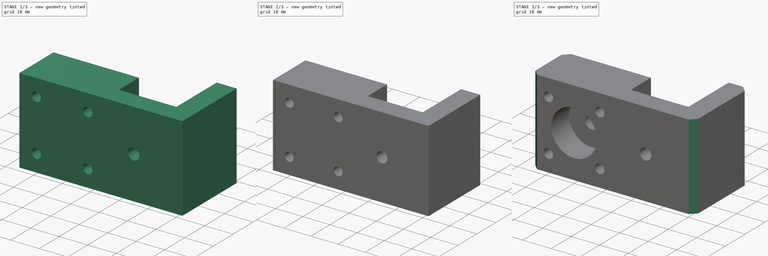
[diagram: build sequence overview — one tinted view per stage of 3, left to right]
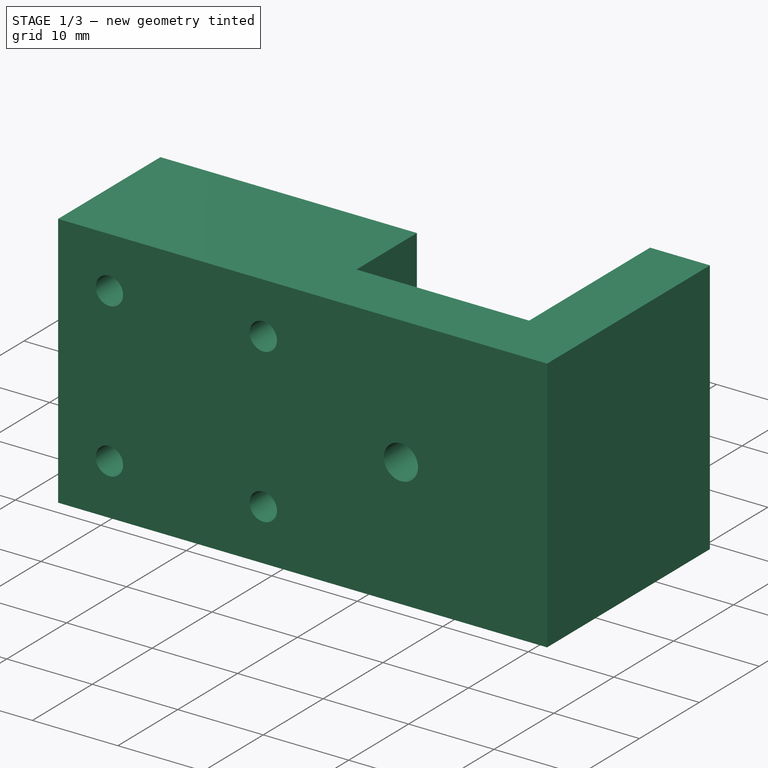
[diagram: stage 1 of 3 — iso view after this stage's code; geometry added in this stage tinted green]
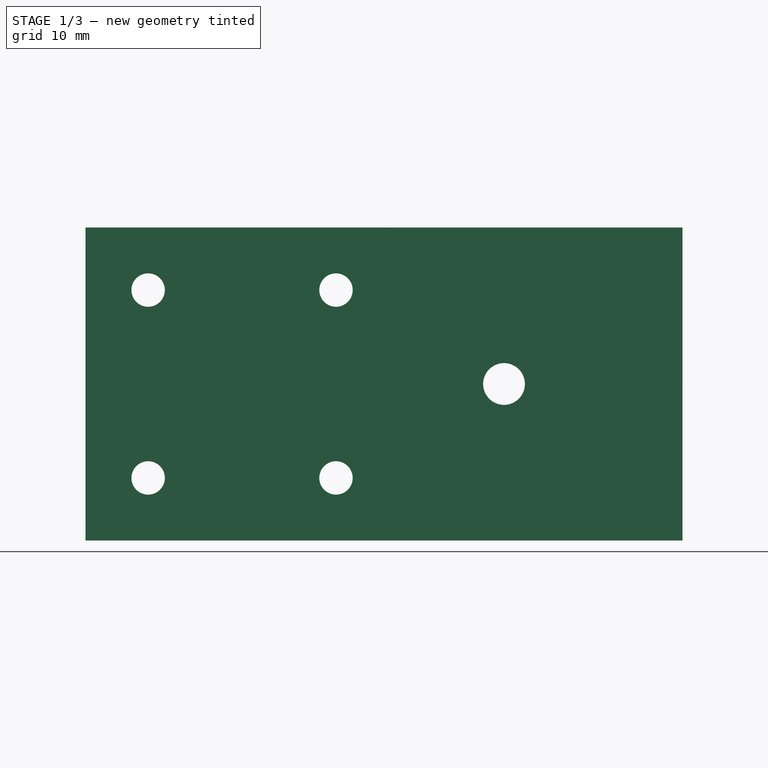
[diagram: stage 1 of 3 — front view after this stage's code; geometry added in this stage tinted green]
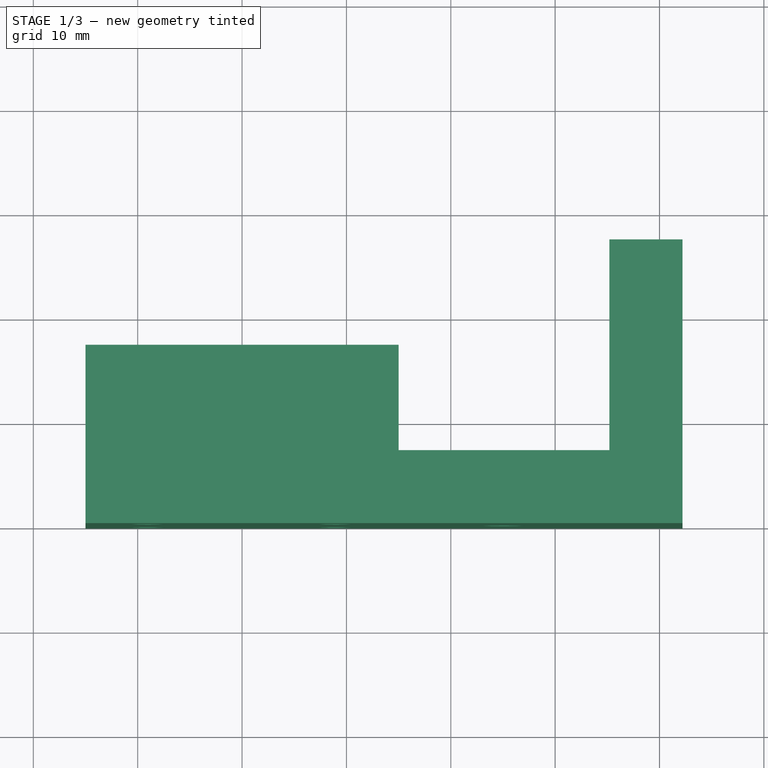
[diagram: stage 1 of 3 — top view after this stage's code; geometry added in this stage tinted green]
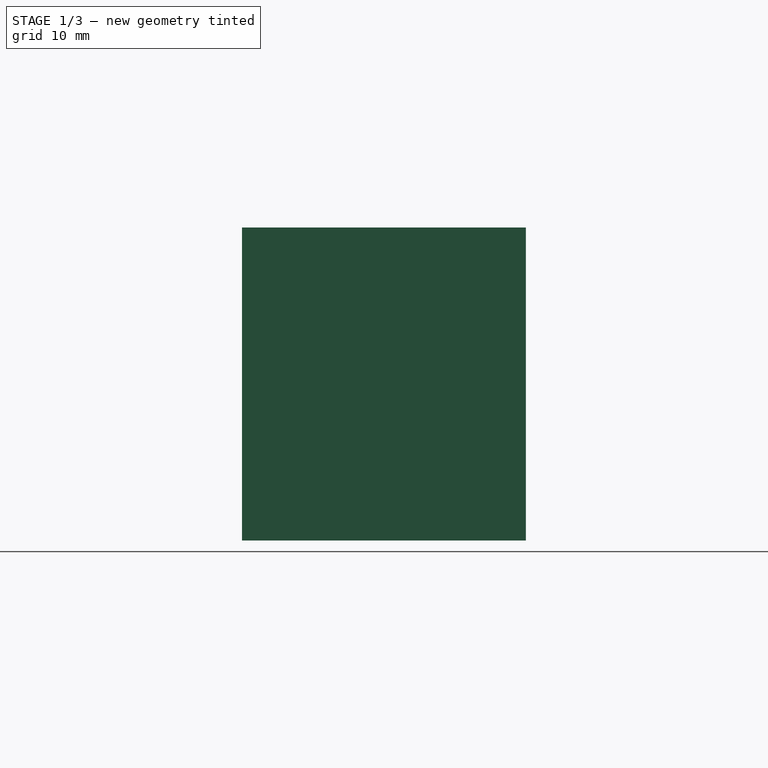
[diagram: stage 1 of 3 — right view after this stage's code; geometry added in this stage tinted green]
FCSTD DOCUMENT  (FreeCAD 0.19R)
Label: pan_n_conn_keeper
License: All rights reserved
LicenseURL: http://en.wikipedia.org/wiki/All_rights_reserved
objects: Sketcher::SketchObject×3, PartDesign::Body×2, PartDesign::Pad×1, PartDesign::Revolution×1, PartDesign::Pocket×1, Part::Cut×1, Part::Chamfer×1
note: 13 computed .brp shape members not serialized (recipe doc carries the construction recipe); baked Part::Feature solids carry a one-line shape summary decoded from their .brp

FEATURE [Sketcher::SketchObject] Sketch
  MapMode = 5
  Support = -> [XY_Plane]
  expr: Constraints[22] = .Constraints.slot_size * 0.5
  expr: Constraints[21] = .Constraints.wall_width
  expr: Constraints[20] = .Constraints.width * 0.5
  sketch-geometry (8):
    g0: LineSegment StartX=-15 StartY=17.1 StartZ=0 EndX=15 EndY=17.1 EndZ=0
    g1: LineSegment StartX=15 StartY=17.1 StartZ=0 EndX=15 EndY=7 EndZ=0
    g2: LineSegment StartX=15 StartY=7 StartZ=0 EndX=35.2 EndY=7 EndZ=0
    g3: LineSegment StartX=35.2 StartY=7 StartZ=0 EndX=35.2 EndY=27.2 EndZ=0
    g4: LineSegment StartX=35.2 StartY=27.2 StartZ=0 EndX=42.2 EndY=27.2 EndZ=0
    g5: LineSegment StartX=42.2 StartY=27.2 StartZ=0 EndX=42.2 EndY=0 EndZ=0
    g6: LineSegment StartX=42.2 StartY=0 StartZ=0 EndX=-15 EndY=0 EndZ=0
    g7: LineSegment StartX=-15 StartY=0 StartZ=0 EndX=-15 EndY=17.1 EndZ=0
  constraints (24):
    c: Horizontal(g0)
    c: Coincident(g0,g1)
    c: Vertical(g1)
    c: Coincident(g1,g2)
    c: Horizontal(g2)
    c: Coincident(g2,g3)
    c: Vertical(g3)
    c: Coincident(g3,g4)
    c: Horizontal(g4)
    c: Coincident(g4,g5)
    c: PointOnObject(g5,g-1)
    c: Vertical(g5)
    c: Distance(g4) = 7  'wall_width'
    c: Distance(g2) = 20.2  'slot_size'
    c: Coincident(g5,g6)
    c: PointOnObject(g6,g-1)
    c: Coincident(g6,g7)
    c: Vertical(g7)
    c: Coincident(g0,g7)
    c: Distance(g0) = 30  'width'
    c: DistanceX(g6,g-1) = 15
    c: DistanceY(g-1,g1) = 7
    c: Distance(g1) = 10.1
    c: Equal(g3,g2)
FEATURE [PartDesign::Pad] Pad
  Length = 30
  Length2 = 100
  Midplane = true
  Profile = -> Sketch
  Type = 0
FEATURE [PartDesign::Body] Body002  label="BodyInner"
  Group = -> [Sketch001,Revolution]
  Origin = -> Origin002
  Tip = -> Revolution
FEATURE [PartDesign::Pocket] Pocket
  BaseFeature = -> Pad
  Length = 5
  Length2 = 100
  Profile = -> Sketch002
  Type = 1
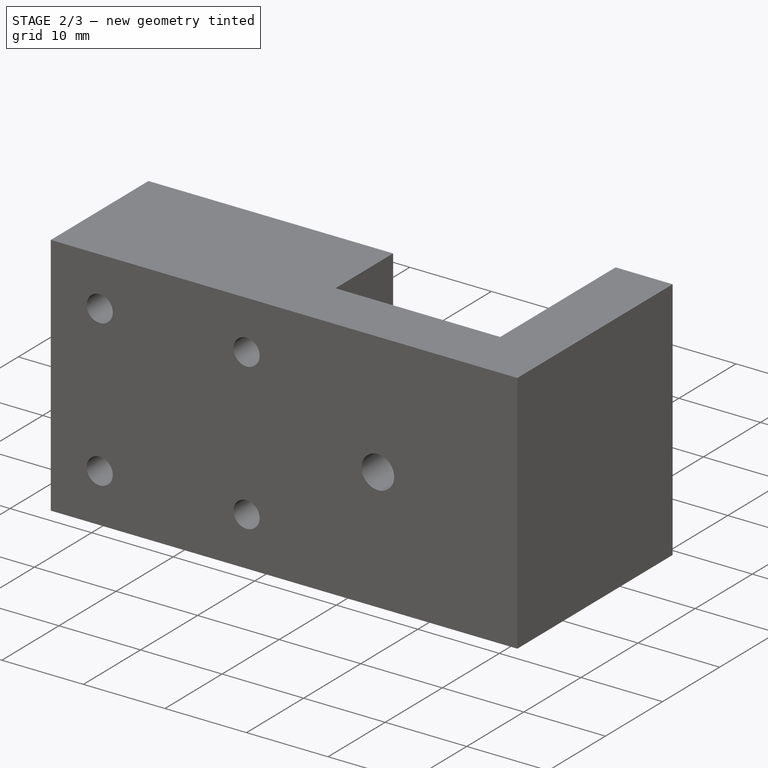
[diagram: stage 2 of 3 — iso view after this stage's code; geometry added in this stage tinted green]
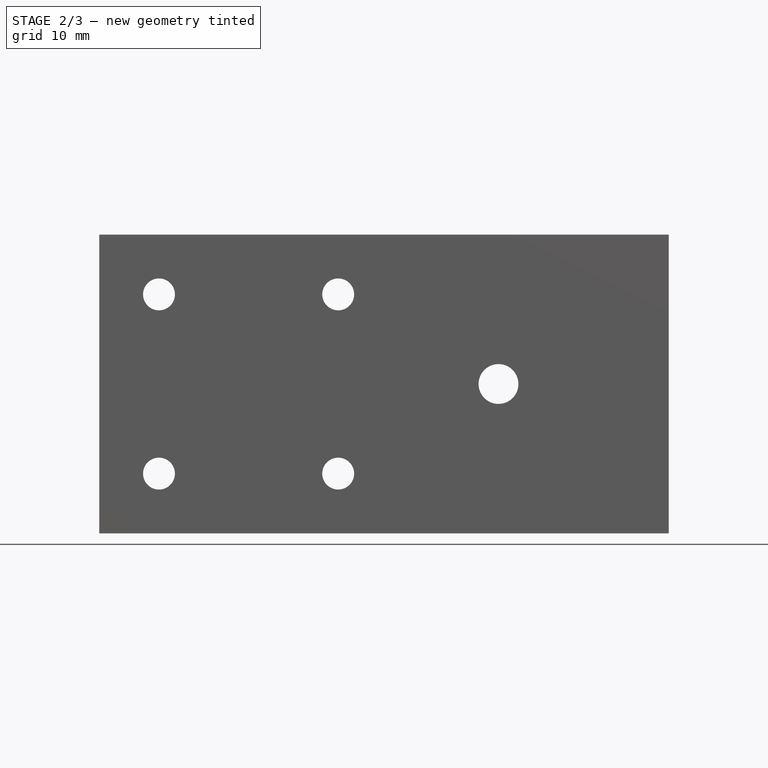
[diagram: stage 2 of 3 — front view after this stage's code; geometry added in this stage tinted green]
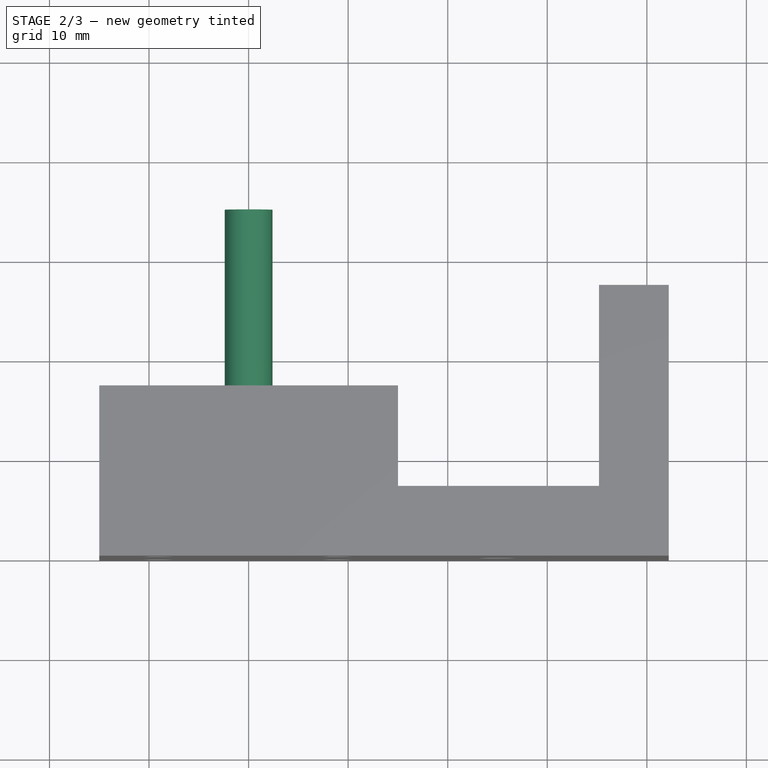
[diagram: stage 2 of 3 — top view after this stage's code; geometry added in this stage tinted green]
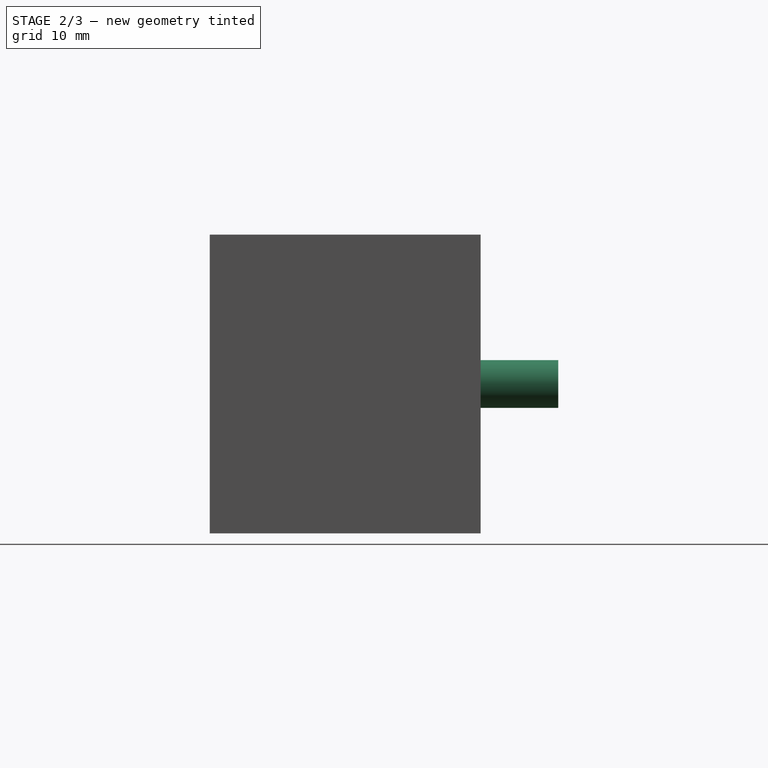
[diagram: stage 2 of 3 — right view after this stage's code; geometry added in this stage tinted green]
FEATURE [Sketcher::SketchObject] Sketch001  label="SketchInner"
  MapMode = 5
  Support = -> [XY_Plane002]
  sketch-geometry (6):
    g0: LineSegment StartX=0 StartY=0 StartZ=0 EndX=8 EndY=0 EndZ=0
    g1: LineSegment StartX=8 StartY=0 StartZ=0 EndX=8 EndY=9 EndZ=0
    g2: LineSegment StartX=8 StartY=9 StartZ=0 EndX=2.4 EndY=9 EndZ=0
    g3: LineSegment StartX=2.4 StartY=9 StartZ=0 EndX=2.4 EndY=35 EndZ=0
    g4: LineSegment StartX=2.4 StartY=35 StartZ=0 EndX=0 EndY=35 EndZ=0
    g5: LineSegment StartX=0 StartY=35 StartZ=0 EndX=0 EndY=0 EndZ=0
  constraints (17):
    c: Coincident(g-1,g0)
    c: PointOnObject(g0,g-1)
    c: Coincident(g0,g1)
    c: Vertical(g1)
    c: Coincident(g1,g2)
    c: Horizontal(g2)
    c: Coincident(g2,g3)
    c: Vertical(g3)
    c: Coincident(g3,g4)
    c: PointOnObject(g4,g-2)
    c: Horizontal(g4)
    c: Coincident(g4,g5)
    c: Coincident(g5,g0)
    c: Distance(g0) = 8
    c: Distance(g4) = 2.4
    c: Distance(g1) = 9
    c: Distance(g5) = 35
FEATURE [Sketcher::SketchObject] Sketch002  label="SketchHoles"
  MapMode = 5
  Placement = pos=(0,0,0) rot=(1,0,0;1.5708rad)
  Support = -> [XZ_Plane]
  expr: Constraints[27] = (.Constraints.width + Sketch.Constraints.slot_size) * 0.5
  sketch-geometry (12):
    g0: Circle CenterX=-9 CenterY=9 CenterZ=0 NormalX=0 NormalY=0 NormalZ=1 AngleXU=0 Radius=1.6
    g1: Circle CenterX=9 CenterY=9 CenterZ=0 NormalX=0 NormalY=0 NormalZ=1 AngleXU=0 Radius=1.6
    g2: Circle CenterX=9 CenterY=-9 CenterZ=0 NormalX=0 NormalY=0 NormalZ=1 AngleXU=0 Radius=1.6
    g3: Circle CenterX=-9 CenterY=-9 CenterZ=0 NormalX=0 NormalY=0 NormalZ=1 AngleXU=0 Radius=1.6
    g4: LineSegment [constr] StartX=-9 StartY=9 StartZ=0 EndX=9 EndY=9 EndZ=0
    g5: LineSegment [constr] StartX=9 StartY=9 StartZ=0 EndX=9 EndY=-9 EndZ=0
    g6: LineSegment [constr] StartX=9 StartY=-9 StartZ=0 EndX=-9 EndY=-9 EndZ=0
    g7: LineSegment [constr] StartX=-9 StartY=-9 StartZ=0 EndX=-9 EndY=9 EndZ=0
    g8: LineSegment [constr] StartX=-9 StartY=-9 StartZ=0 EndX=9 EndY=9 EndZ=0
    g9: LineSegment [constr] StartX=-9 StartY=9 StartZ=0 EndX=9 EndY=-9 EndZ=0
    g10: GeomPoint X=0 Y=0 Z=0
    g11: Circle CenterX=25.1 CenterY=0 CenterZ=0 NormalX=0 NormalY=0 NormalZ=1 AngleXU=0 Radius=2
  constraints (28):
    c: Coincident(g4,g5)
    c: Coincident(g5,g6)
    c: Coincident(g6,g7)
    c: Coincident(g7,g4)
    c: Horizontal(g4)
    c: Vertical(g5)
    c: Distance(g5) = 18  'stride'
    c: Equal(g7,g4)
    c: Equal(g4,g5)
    c: Equal(g5,g6)
    c: Coincident(g8,g6)
    c: Coincident(g8,g4)
    c: Coincident(g9,g4)
    c: Coincident(g9,g5)
    c: PointOnObject(g10,g9)
    c: PointOnObject(g10,g8)
    c: Coincident(g10,g-1)
    c: Coincident(g0,g4)
    c: Coincident(g1,g4)
    c: Coincident(g6,g3)
    c: Coincident(g2,g5)
    c: Diameter(g1) = 3.2
    c: Equal(g1,g0)
    c: Equal(g0,g3)
    c: Equal(g3,g2)
    c: PointOnObject(g11,g-1)
    c: Diameter(g11) = 4
    c: DistanceX(g10,g11) = 25.1
FEATURE [PartDesign::Revolution] Revolution
  Angle = 360
  Axis = (0,1,0)
  Base = (0,0,0)
  Profile = -> Sketch001
  ReferenceAxis = -> Sketch001 [V_Axis]
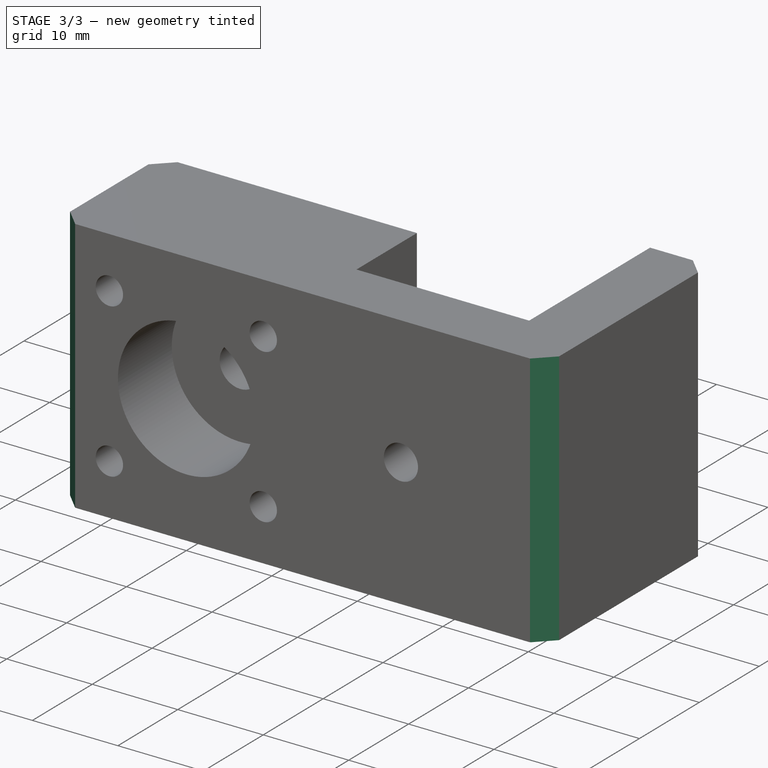
[diagram: stage 3 of 3 — iso view after this stage's code; geometry added in this stage tinted green]
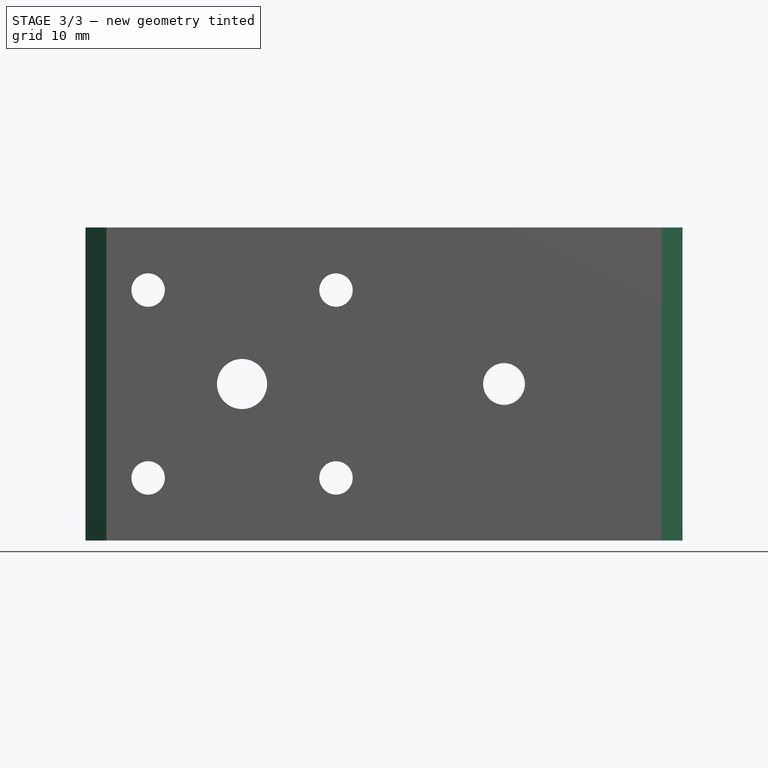
[diagram: stage 3 of 3 — front view after this stage's code; geometry added in this stage tinted green]
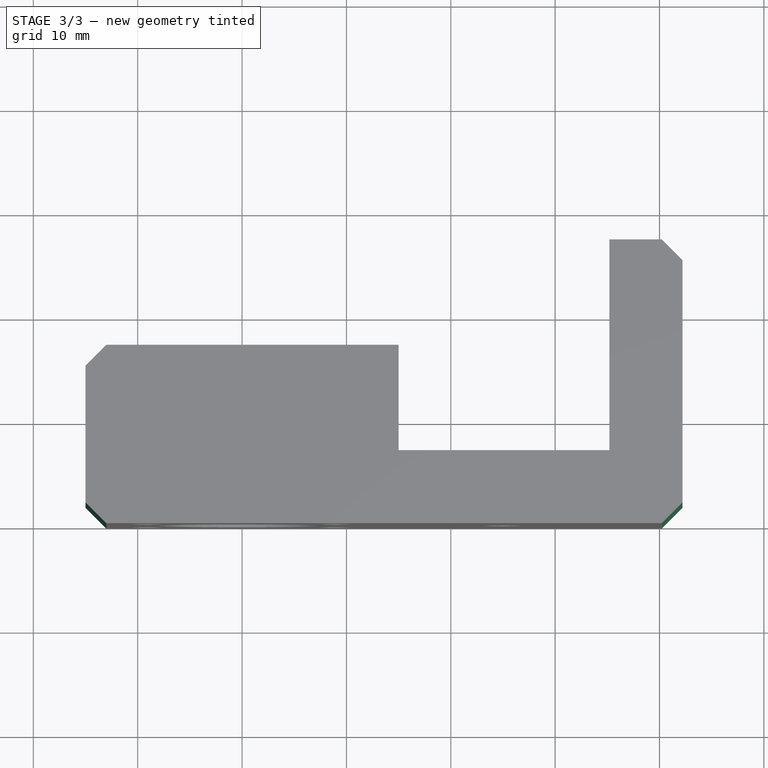
[diagram: stage 3 of 3 — top view after this stage's code; geometry added in this stage tinted green]
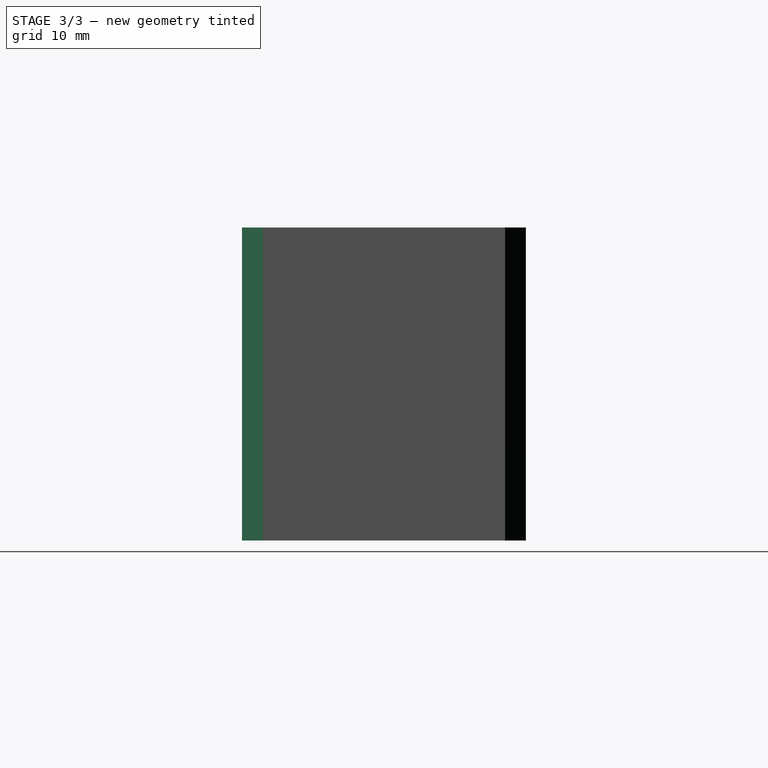
[diagram: stage 3 of 3 — right view after this stage's code; geometry added in this stage tinted green]
FEATURE [PartDesign::Body] Body
  Group = -> [Sketch,Pad,Sketch002,Pocket]
  Origin = -> Origin
  Tip = -> Pocket
FEATURE [Part::Cut] Cut
  Base = -> Body
  Tool = -> Body002
FEATURE [Part::Chamfer] Chamfer
  Base = -> Cut
  Edges = 4 edges r=2: [Edge1,Edge10,Edge36,Edge42]
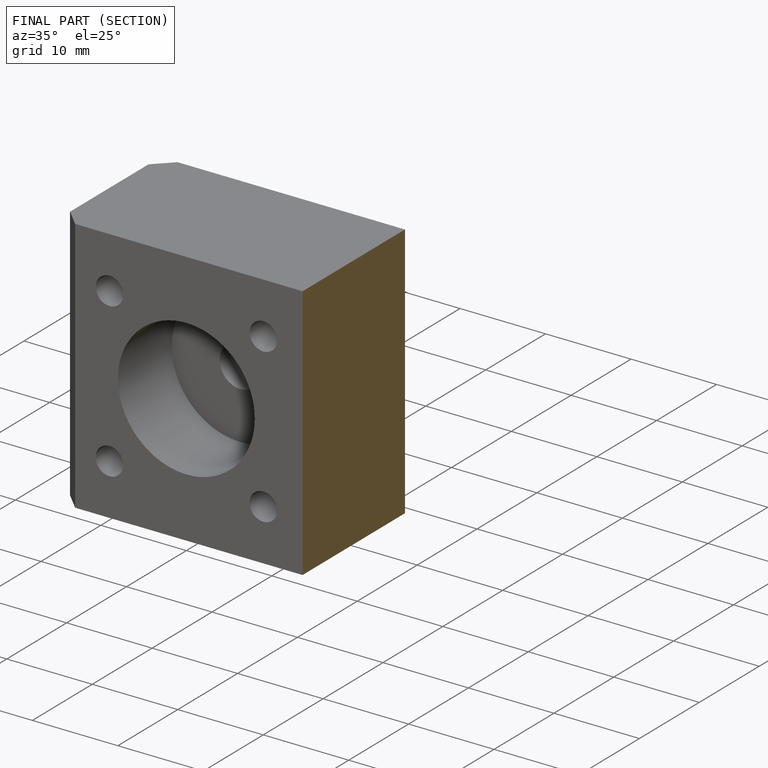
[diagram: finished part — half-section view (interior)]
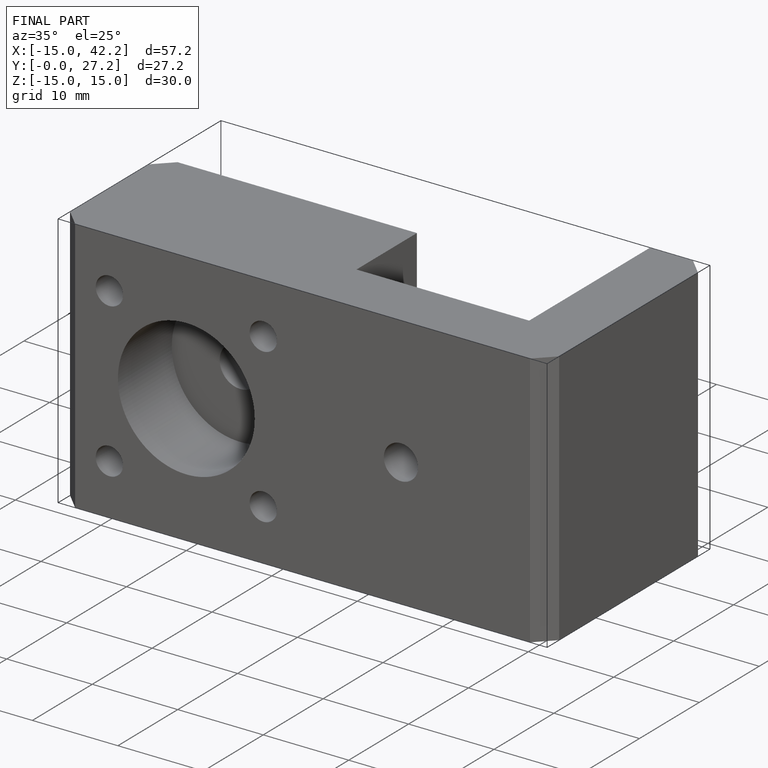
[diagram: finished part — iso view with bounding-box wireframe]
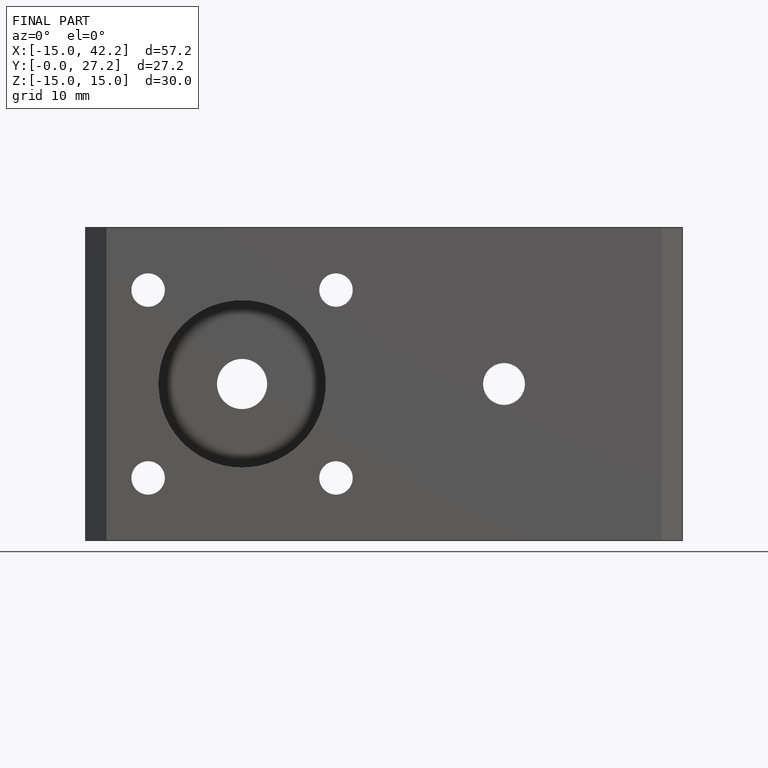
[diagram: finished part — front view with bounding-box wireframe]
